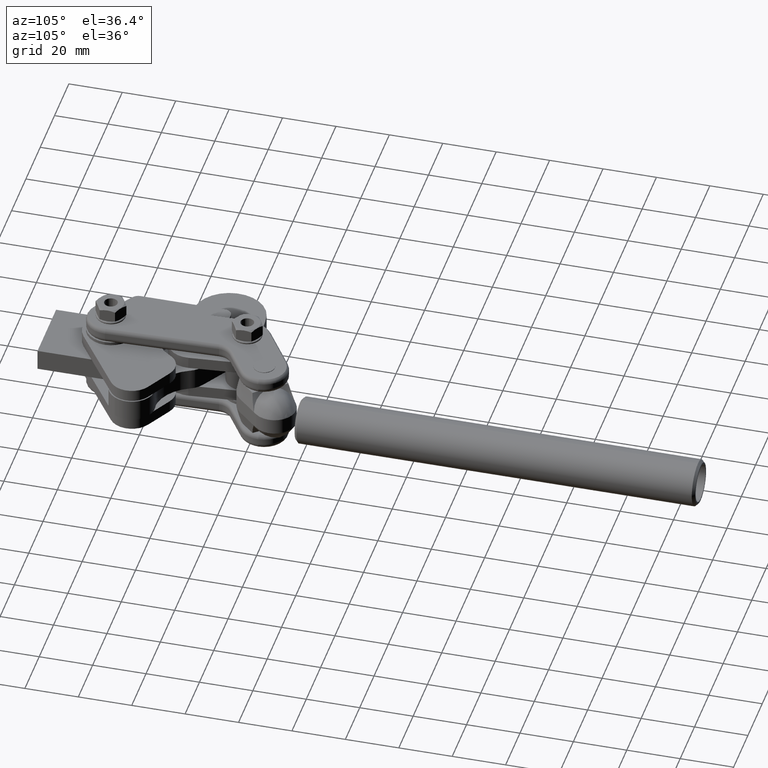
[diagram: clean part render]
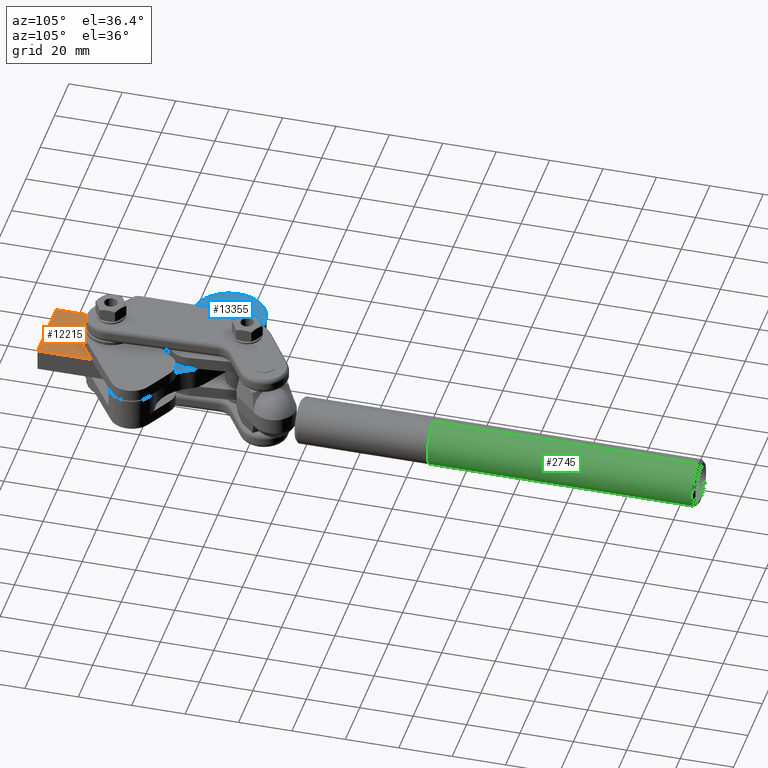
[diagram: same view with three faces highlighted in distinct colors, each labeled with its STEP entity id]
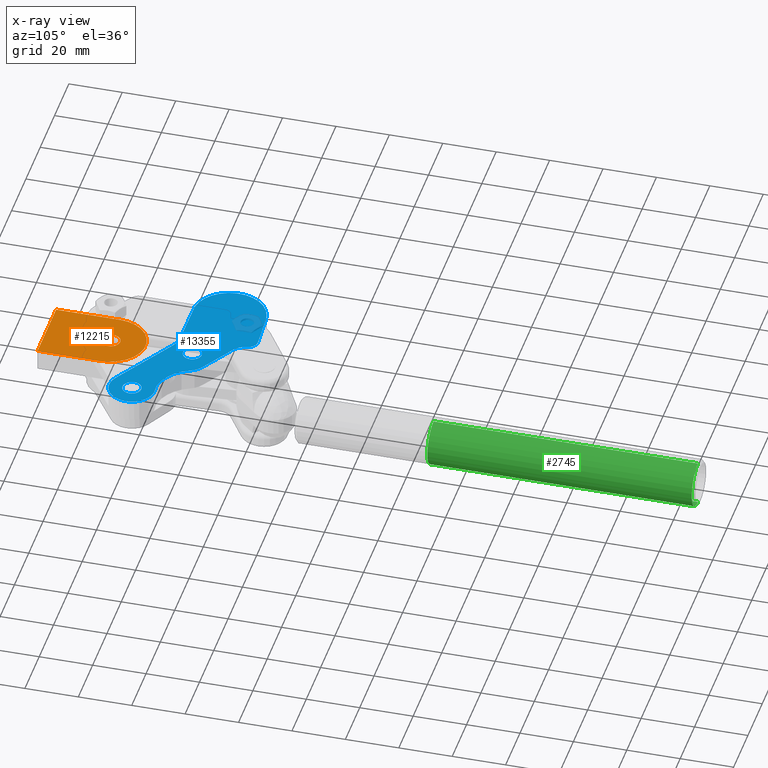
[diagram: x-ray of the same camera — body ghosted, the three highlighted faces saturated]
A machine part, auxiliary view with three faces highlighted in distinct colors.
The next image is the same camera in x-ray (body ghosted, the three faces saturated) — at least one of them is partly hidden behind the body in this view.
Their STEP definitions:

[orange] entity #12215 — the highlighted planar face has unit normal (0, 0, -1).
#26 = CARTESIAN_POINT ( 'NONE',  ( 0.0000000000000000000, 24.00000000000000000, 4.000000000000000000 ) ) ;
#354 = CARTESIAN_POINT ( 'NONE',  ( 0.0000000000000000000, 24.00000000000000000, 4.000000000000000000 ) ) ;
#988 = AXIS2_PLACEMENT_3D ( 'NONE', #9189, #2830, #10236 ) ;
#1036 = CARTESIAN_POINT ( 'NONE',  ( -13.00000000000000000, 0.0000000000000000000, 4.000000000000000000 ) ) ;
#1094 = DIRECTION ( 'NONE',  ( -1.000000000000000000, 0.0000000000000000000, 0.0000000000000000000 ) ) ;
#1440 = DIRECTION ( 'NONE',  ( 1.000000000000000000, 0.0000000000000000000, 0.0000000000000000000 ) ) ;
#1535 = EDGE_CURVE ( 'NONE', #2512, #6559, #13416, .T. ) ;
#1926 = ORIENTED_EDGE ( 'NONE', *, *, #2908, .F. ) ;
#2159 = VERTEX_POINT ( 'NONE', #7593 ) ;
#2172 = VECTOR ( 'NONE', #5694, 1000.000000000000000 ) ;
#2198 = DIRECTION ( 'NONE',  ( 0.0000000000000000000, 0.0000000000000000000, 1.000000000000000000 ) ) ;
#2233 = FACE_BOUND ( 'NONE', #11424, .T. ) ;
#2421 = CARTESIAN_POINT ( 'NONE',  ( 13.00000000000000000, 0.0000000000000000000, 4.000000000000000000 ) ) ;
#2512 = VERTEX_POINT ( 'NONE', #13359 ) ;
#2830 = DIRECTION ( 'NONE',  ( 0.0000000000000000000, 0.0000000000000000000, 1.000000000000000000 ) ) ;
#2908 = EDGE_CURVE ( 'NONE', #12139, #5269, #7750, .T. ) ;
#3834 = ORIENTED_EDGE ( 'NONE', *, *, #5483, .T. ) ;
#3937 = ORIENTED_EDGE ( 'NONE', *, *, #4876, .T. ) ;
#3939 = LINE ( 'NONE', #10620, #9582 ) ;
#4876 = EDGE_CURVE ( 'NONE', #2159, #2512, #12533, .T. ) ;
#5020 = FACE_OUTER_BOUND ( 'NONE', #6527, .T. ) ;
#5039 = LINE ( 'NONE', #9548, #13161 ) ;
#5269 = VERTEX_POINT ( 'NONE', #12309 ) ;
#5483 = EDGE_CURVE ( 'NONE', #6559, #10908, #5039, .T. ) ;
#5694 = DIRECTION ( 'NONE',  ( -0.0000000000000000000, -1.000000000000000000, -0.0000000000000000000 ) ) ;
#5751 = EDGE_CURVE ( 'NONE', #5269, #12139, #6033, .T. ) ;
#6033 = CIRCLE ( 'NONE', #988, 3.499999999999999600 ) ;
#6406 = AXIS2_PLACEMENT_3D ( 'NONE', #26, #7402, #1094 ) ;
#6527 = EDGE_LOOP ( 'NONE', ( #7287, #3834, #8499, #3937 ) ) ;
#6559 = VERTEX_POINT ( 'NONE', #1036 ) ;
#7070 = CARTESIAN_POINT ( 'NONE',  ( 3.499999999999999600, 24.00000000000000000, 4.000000000000000000 ) ) ;
#7287 = ORIENTED_EDGE ( 'NONE', *, *, #1535, .T. ) ;
#7402 = DIRECTION ( 'NONE',  ( -0.0000000000000000000, 0.0000000000000000000, -1.000000000000000000 ) ) ;
#7593 = CARTESIAN_POINT ( 'NONE',  ( 13.00000000000000000, 24.00000000000000000, 4.000000000000000000 ) ) ;
#7749 = AXIS2_PLACEMENT_3D ( 'NONE', #354, #7758, #1440 ) ;
#7750 = CIRCLE ( 'NONE', #7749, 3.499999999999999600 ) ;
#7758 = DIRECTION ( 'NONE',  ( 0.0000000000000000000, 0.0000000000000000000, 1.000000000000000000 ) ) ;
#8499 = ORIENTED_EDGE ( 'NONE', *, *, #9756, .T. ) ;
#8547 = CARTESIAN_POINT ( 'NONE',  ( 0.0000000000000000000, 24.00000000000000000, 4.000000000000000000 ) ) ;
#9077 = ORIENTED_EDGE ( 'NONE', *, *, #5751, .F. ) ;
#9189 = CARTESIAN_POINT ( 'NONE',  ( 0.0000000000000000000, 24.00000000000000000, 4.000000000000000000 ) ) ;
#9364 = CARTESIAN_POINT ( 'NONE',  ( -13.00000000000000000, 0.0000000000000000000, 4.000000000000000000 ) ) ;
#9548 = CARTESIAN_POINT ( 'NONE',  ( -13.00000000000000000, 0.0000000000000000000, 4.000000000000000000 ) ) ;
#9582 = VECTOR ( 'NONE', #12683, 1000.000000000000000 ) ;
#9604 = DIRECTION ( 'NONE',  ( -1.000000000000000000, 0.0000000000000000000, 0.0000000000000000000 ) ) ;
#9756 = EDGE_CURVE ( 'NONE', #10908, #2159, #3939, .T. ) ;
#10236 = DIRECTION ( 'NONE',  ( 1.000000000000000000, 0.0000000000000000000, 0.0000000000000000000 ) ) ;
#10554 = PLANE ( 'NONE',  #6406 ) ;
#10620 = CARTESIAN_POINT ( 'NONE',  ( 13.00000000000000000, 0.0000000000000000000, 4.000000000000000000 ) ) ;
#10625 = DIRECTION ( 'NONE',  ( 1.000000000000000000, 0.0000000000000000000, 0.0000000000000000000 ) ) ;
#10908 = VERTEX_POINT ( 'NONE', #2421 ) ;
#11424 = EDGE_LOOP ( 'NONE', ( #9077, #1926 ) ) ;
#12139 = VERTEX_POINT ( 'NONE', #7070 ) ;
#12183 = AXIS2_PLACEMENT_3D ( 'NONE', #8547, #2198, #9604 ) ;
#12215 = ADVANCED_FACE ( 'NONE', ( #2233, #5020 ), #10554, .F. ) ;
#12309 = CARTESIAN_POINT ( 'NONE',  ( -3.499999999999999600, 24.00000000000000000, 4.000000000000000000 ) ) ;
#12533 = CIRCLE ( 'NONE', #12183, 13.00000000000000000 ) ;
#12683 = DIRECTION ( 'NONE',  ( 0.0000000000000000000, 1.000000000000000000, 0.0000000000000000000 ) ) ;
#13161 = VECTOR ( 'NONE', #10625, 1000.000000000000000 ) ;
#13359 = CARTESIAN_POINT ( 'NONE',  ( -13.00000000000000000, 24.00000000000000000, 4.000000000000000000 ) ) ;
#13416 = LINE ( 'NONE', #9364, #2172 ) ;

[blue] entity #13355 — the highlighted planar face has unit normal (-0, -0, -1).
#31 = AXIS2_PLACEMENT_3D ( 'NONE', #987, #8370, #2023 ) ;
#33 = CIRCLE ( 'NONE', #6667, 9.499999999999991100 ) ;
#121 = EDGE_LOOP ( 'NONE', ( #13562, #13673 ) ) ;
#377 = VERTEX_POINT ( 'NONE', #12415 ) ;
#415 = DIRECTION ( 'NONE',  ( -0.8536011518457667900, 0.5209271288458492400, 0.0000000000000000000 ) ) ;
#471 = FACE_OUTER_BOUND ( 'NONE', #3880, .T. ) ;
#508 = CARTESIAN_POINT ( 'NONE',  ( -24.50242687896368900, 47.95494891805069700, 4.000000000000003600 ) ) ;
#601 = AXIS2_PLACEMENT_3D ( 'NONE', #11770, #5418, #12833 ) ;
#604 = ORIENTED_EDGE ( 'NONE', *, *, #10674, .F. ) ;
#896 = DIRECTION ( 'NONE',  ( -0.5209271288458501300, -0.8536011518457663500, 1.445602896647345100E-016 ) ) ;
#957 = VERTEX_POINT ( 'NONE', #2132 ) ;
#964 = VECTOR ( 'NONE', #1748, 1000.000000000000000 ) ;
#987 = CARTESIAN_POINT ( 'NONE',  ( 25.90000000001508000, 38.79999999997377800, 4.000000000000002700 ) ) ;
#1084 = DIRECTION ( 'NONE',  ( 4.280963818240967600E-017, 1.390111730283586200E-016, 1.000000000000000000 ) ) ;
#1202 = DIRECTION ( 'NONE',  ( -0.9611167817664018100, 0.2761422311183037700, -2.927910912527442500E-017 ) ) ;
#1246 = DIRECTION ( 'NONE',  ( -0.8536011518457667900, 0.5209271288458492400, 0.0000000000000000000 ) ) ;
#1286 = CARTESIAN_POINT ( 'NONE',  ( 0.1212452142729317200, 54.53199929111844600, 4.000000000000003600 ) ) ;
#1346 = EDGE_CURVE ( 'NONE', #9281, #11988, #8315, .T. ) ;
#1693 = ORIENTED_EDGE ( 'NONE', *, *, #7377, .F. ) ;
#1748 = DIRECTION ( 'NONE',  ( -0.8536011518457665700, 0.5209271288458498000, -3.587233478055108900E-017 ) ) ;
#1932 = EDGE_CURVE ( 'NONE', #13576, #2480, #5772, .T. ) ;
#2023 = DIRECTION ( 'NONE',  ( -0.5209271288458500200, -0.8536011518457665700, 1.020425574104004900E-016 ) ) ;
#2132 = CARTESIAN_POINT ( 'NONE',  ( 3.108849245733115800, 52.70875434015797400, 4.000000000000003600 ) ) ;
#2156 = CIRCLE ( 'NONE', #11644, 3.499999999999999100 ) ;
#2196 = ORIENTED_EDGE ( 'NONE', *, *, #7857, .F. ) ;
#2321 = DIRECTION ( 'NONE',  ( -0.8536011518457667900, 0.5209271288458492400, 0.0000000000000000000 ) ) ;
#2411 = CARTESIAN_POINT ( 'NONE',  ( 6.999544392929140100, 60.29219226518822700, 4.000000000000000000 ) ) ;
#2453 = ORIENTED_EDGE ( 'NONE', *, *, #3614, .F. ) ;
#2480 = VERTEX_POINT ( 'NONE', #10083 ) ;
#2497 = CARTESIAN_POINT ( 'NONE',  ( -7.877074267398493900, 37.74024782050781100, 4.000000000000003600 ) ) ;
#2568 = AXIS2_PLACEMENT_3D ( 'NONE', #3843, #11265, #4906 ) ;
#2652 = CIRCLE ( 'NONE', #31, 8.499999999999994700 ) ;
#2747 = DIRECTION ( 'NONE',  ( 0.9982660130668926700, 0.05886397162552297500, -5.091815657396233600E-017 ) ) ;
#2750 = CARTESIAN_POINT ( 'NONE',  ( 25.90000000001508000, 38.79999999997377800, 4.000000000000004400 ) ) ;
#2751 = CARTESIAN_POINT ( 'NONE',  ( 21.47211940482535700, 31.54439020928475300, 4.000000000000002700 ) ) ;
#2776 = EDGE_CURVE ( 'NONE', #6035, #13576, #9095, .T. ) ;
#2782 = AXIS2_PLACEMENT_3D ( 'NONE', #10729, #4359, #11774 ) ;
#2991 = CARTESIAN_POINT ( 'NONE',  ( -8.164832957990750400, 47.84246834038963000, 4.000000000000002700 ) ) ;
#3001 = DIRECTION ( 'NONE',  ( 4.280963818240967600E-017, 1.390111730283586200E-016, 1.000000000000000000 ) ) ;
#3097 = DIRECTION ( 'NONE',  ( -0.5209271288458498000, -0.8536011518457665700, 1.409607993217304700E-016 ) ) ;
#3526 = DIRECTION ( 'NONE',  ( -0.5209271288458520200, -0.8536011518457651300, 1.734723475976807800E-016 ) ) ;
#3527 = EDGE_CURVE ( 'NONE', #9896, #12032, #7623, .T. ) ;
#3545 = EDGE_CURVE ( 'NONE', #9896, #8255, #10111, .T. ) ;
#3566 = CARTESIAN_POINT ( 'NONE',  ( 22.91239596855489700, 40.62324495093425000, 4.000000000000004400 ) ) ;
#3598 = AXIS2_PLACEMENT_3D ( 'NONE', #1286, #8668, #2321 ) ;
#3614 = EDGE_CURVE ( 'NONE', #6788, #9692, #33, .T. ) ;
#3673 = CARTESIAN_POINT ( 'NONE',  ( -2.667802978939998800, 46.27625933896546700, 4.000000000000002700 ) ) ;
#3683 = ORIENTED_EDGE ( 'NONE', *, *, #2776, .F. ) ;
#3693 = EDGE_CURVE ( 'NONE', #11988, #9281, #2156, .T. ) ;
#3719 = EDGE_CURVE ( 'NONE', #377, #4782, #4605, .T. ) ;
#3825 = DIRECTION ( 'NONE',  ( 0.9908800054895677800, 0.1347472252812431700, -6.456412498823434100E-016 ) ) ;
#3843 = CARTESIAN_POINT ( 'NONE',  ( 25.90000000001508000, 38.79999999997377800, 4.000000000000002700 ) ) ;
#3880 = EDGE_LOOP ( 'NONE', ( #8381, #11761, #12487, #8806, #9796, #6640, #2196, #604, #2453, #13124, #12226, #1693, #5192, #3683, #4370 ) ) ;
#4198 = DIRECTION ( 'NONE',  ( -4.280963818240967600E-017, -1.390111730283586200E-016, -1.000000000000000000 ) ) ;
#4236 = ORIENTED_EDGE ( 'NONE', *, *, #9815, .T. ) ;
#4359 = DIRECTION ( 'NONE',  ( -4.280963818240967600E-017, -1.390111730283586200E-016, -1.000000000000000000 ) ) ;
#4364 = LINE ( 'NONE', #8609, #7194 ) ;
#4370 = ORIENTED_EDGE ( 'NONE', *, *, #9531, .F. ) ;
#4401 = CIRCLE ( 'NONE', #2568, 8.499999999999994700 ) ;
#4605 = CIRCLE ( 'NONE', #13059, 8.500000000000051500 ) ;
#4780 = VECTOR ( 'NONE', #3825, 1000.000000000000100 ) ;
#4782 = VERTEX_POINT ( 'NONE', #12518 ) ;
#4906 = DIRECTION ( 'NONE',  ( -0.5209271288458500200, -0.8536011518457665700, 1.020425574104004900E-016 ) ) ;
#4938 = EDGE_CURVE ( 'NONE', #4782, #6788, #9076, .T. ) ;
#5192 = ORIENTED_EDGE ( 'NONE', *, *, #1932, .F. ) ;
#5210 = CARTESIAN_POINT ( 'NONE',  ( 25.90000000001508000, 38.79999999997377800, 4.000000000000004400 ) ) ;
#5226 = VERTEX_POINT ( 'NONE', #2751 ) ;
#5243 = EDGE_CURVE ( 'NONE', #5226, #5669, #6878, .T. ) ;
#5247 = CIRCLE ( 'NONE', #13549, 9.999999999999996400 ) ;
#5403 = CARTESIAN_POINT ( 'NONE',  ( -7.808228198321939000, 47.74001082863817700, 4.000000000000002700 ) ) ;
#5418 = DIRECTION ( 'NONE',  ( 4.280963818240967600E-017, 1.390111730283586200E-016, 1.000000000000000000 ) ) ;
#5482 = CARTESIAN_POINT ( 'NONE',  ( -8.662945562487738700, 72.31070454210930600, 4.000000000000000000 ) ) ;
#5562 = EDGE_CURVE ( 'NONE', #13152, #10232, #12834, .T. ) ;
#5669 = VERTEX_POINT ( 'NONE', #3673 ) ;
#5772 = CIRCLE ( 'NONE', #6683, 5.999999999999976000 ) ;
#5875 = CARTESIAN_POINT ( 'NONE',  ( -26.84491984047457100, 74.84251412023201100, 4.000000000000000000 ) ) ;
#5966 = DIRECTION ( 'NONE',  ( 4.280963818240970000E-017, 1.390111730283586700E-016, 1.000000000000000000 ) ) ;
#6035 = VERTEX_POINT ( 'NONE', #9626 ) ;
#6297 = DIRECTION ( 'NONE',  ( -0.8536011518457667900, 0.5209271288458492400, 0.0000000000000000000 ) ) ;
#6336 = EDGE_LOOP ( 'NONE', ( #4236, #7548 ) ) ;
#6473 = DIRECTION ( 'NONE',  ( -0.9999763008130376800, 0.006884606907656742000, 7.606646523213604500E-017 ) ) ;
#6640 = ORIENTED_EDGE ( 'NONE', *, *, #5243, .F. ) ;
#6667 = AXIS2_PLACEMENT_3D ( 'NONE', #9369, #3001, #10419 ) ;
#6683 = AXIS2_PLACEMENT_3D ( 'NONE', #9035, #1084, #896 ) ;
#6693 = CARTESIAN_POINT ( 'NONE',  ( -25.93634118496199600, 74.86544231912481000, 3.999999999999999100 ) ) ;
#6735 = DIRECTION ( 'NONE',  ( 2.017846745673936800E-017, -3.579765898987047600E-017, -1.000000000000000000 ) ) ;
#6788 = VERTEX_POINT ( 'NONE', #10939 ) ;
#6878 = LINE ( 'NONE', #6996, #964 ) ;
#6996 = CARTESIAN_POINT ( 'NONE',  ( 21.47211940482535700, 31.54439020928475300, 4.000000000000002700 ) ) ;
#7194 = VECTOR ( 'NONE', #6473, 1000.000000000000100 ) ;
#7318 = PLANE ( 'NONE',  #12619 ) ;
#7377 = EDGE_CURVE ( 'NONE', #2480, #377, #10298, .T. ) ;
#7548 = ORIENTED_EDGE ( 'NONE', *, *, #11974, .T. ) ;
#7623 = CIRCLE ( 'NONE', #13332, 13.50000000000000000 ) ;
#7690 = DIRECTION ( 'NONE',  ( 0.8536011518457635700, -0.5209271288458546800, 3.587233478055189700E-017 ) ) ;
#7857 = EDGE_CURVE ( 'NONE', #8072, #5226, #2652, .T. ) ;
#7887 = CARTESIAN_POINT ( 'NONE',  ( -25.53843458512146800, 74.91955261497554400, 3.999999999999999100 ) ) ;
#7933 = CIRCLE ( 'NONE', #3598, 3.499999999999999100 ) ;
#8014 = VERTEX_POINT ( 'NONE', #11857 ) ;
#8072 = VERTEX_POINT ( 'NONE', #11902 ) ;
#8255 = VERTEX_POINT ( 'NONE', #7887 ) ;
#8315 = CIRCLE ( 'NONE', #9628, 3.499999999999999100 ) ;
#8370 = DIRECTION ( 'NONE',  ( -4.280963818240967600E-017, -1.390111730283586200E-016, -1.000000000000000000 ) ) ;
#8381 = ORIENTED_EDGE ( 'NONE', *, *, #3545, .F. ) ;
#8401 = CARTESIAN_POINT ( 'NONE',  ( 24.71209426680241000, 47.21658362808563000, 4.000000000000001800 ) ) ;
#8609 = CARTESIAN_POINT ( 'NONE',  ( -8.164832957990750400, 47.84246834038963000, 4.000000000000002700 ) ) ;
#8668 = DIRECTION ( 'NONE',  ( 2.017846745673936800E-017, -3.579765898987047600E-017, -1.000000000000000000 ) ) ;
#8806 = ORIENTED_EDGE ( 'NONE', *, *, #5562, .F. ) ;
#8899 = CARTESIAN_POINT ( 'NONE',  ( 28.88760403147526300, 36.97675504901330600, 4.000000000000004400 ) ) ;
#8933 = FACE_BOUND ( 'NONE', #6336, .T. ) ;
#8949 = VECTOR ( 'NONE', #2747, 1000.000000000000100 ) ;
#9035 = CARTESIAN_POINT ( 'NONE',  ( -2.739245469980559300, 73.26452696480140500, 3.999999999999999100 ) ) ;
#9076 = CIRCLE ( 'NONE', #601, 15.00000000000000700 ) ;
#9095 = CIRCLE ( 'NONE', #2782, 4.000000000000020400 ) ;
#9274 = FACE_BOUND ( 'NONE', #121, .T. ) ;
#9281 = VERTEX_POINT ( 'NONE', #3566 ) ;
#9369 = CARTESIAN_POINT ( 'NONE',  ( 23.38443491791767000, 56.62335356538709900, 4.000000000000000000 ) ) ;
#9420 = CARTESIAN_POINT ( 'NONE',  ( 39.82660056468535700, 45.30333241578456000, 4.000000000000000900 ) ) ;
#9466 = DIRECTION ( 'NONE',  ( -4.280963818240970700E-017, -1.390111730283586700E-016, -1.000000000000000000 ) ) ;
#9531 = EDGE_CURVE ( 'NONE', #8255, #6035, #11745, .T. ) ;
#9626 = CARTESIAN_POINT ( 'NONE',  ( -12.84753484399471900, 75.66788697924880600, 3.999999999999999100 ) ) ;
#9628 = AXIS2_PLACEMENT_3D ( 'NONE', #2750, #13672, #1246 ) ;
#9692 = VERTEX_POINT ( 'NONE', #8401 ) ;
#9796 = ORIENTED_EDGE ( 'NONE', *, *, #9921, .F. ) ;
#9815 = EDGE_CURVE ( 'NONE', #8014, #957, #7933, .T. ) ;
#9896 = VERTEX_POINT ( 'NONE', #6693 ) ;
#9898 = DIRECTION ( 'NONE',  ( 4.280963818240967600E-017, 1.390111730283586200E-016, 1.000000000000000000 ) ) ;
#9921 = EDGE_CURVE ( 'NONE', #5669, #13152, #5247, .T. ) ;
#10083 = CARTESIAN_POINT ( 'NONE',  ( -5.864808243055432700, 68.14292005372678300, 3.999999999999999100 ) ) ;
#10111 = LINE ( 'NONE', #12347, #4780 ) ;
#10232 = VERTEX_POINT ( 'NONE', #2991 ) ;
#10298 = LINE ( 'NONE', #2411, #12438 ) ;
#10419 = DIRECTION ( 'NONE',  ( -0.5209271288458503500, -0.8536011518457662400, 1.826024711554535400E-016 ) ) ;
#10564 = CARTESIAN_POINT ( 'NONE',  ( 2.571663797739407500, 53.03658247449919800, 4.000000000000001800 ) ) ;
#10674 = EDGE_CURVE ( 'NONE', #9692, #8072, #4401, .T. ) ;
#10729 = CARTESIAN_POINT ( 'NONE',  ( -12.61207895749263000, 71.67482292698120700, 3.999999999999999100 ) ) ;
#10939 = CARTESIAN_POINT ( 'NONE',  ( 21.84791358839372000, 47.24843478152995100, 4.000000000000002700 ) ) ;
#11265 = DIRECTION ( 'NONE',  ( -4.280963818240967600E-017, -1.390111730283586200E-016, -1.000000000000000000 ) ) ;
#11603 = DIRECTION ( 'NONE',  ( -0.5209271288458498000, -0.8536011518457664600, 1.020425574103998000E-016 ) ) ;
#11644 = AXIS2_PLACEMENT_3D ( 'NONE', #5210, #12631, #6297 ) ;
#11745 = LINE ( 'NONE', #5875, #8949 ) ;
#11761 = ORIENTED_EDGE ( 'NONE', *, *, #3527, .T. ) ;
#11770 = CARTESIAN_POINT ( 'NONE',  ( 24.27399989816835600, 62.05093812446232700, 4.000000000000000000 ) ) ;
#11774 = DIRECTION ( 'NONE',  ( -0.5209271288458498000, -0.8536011518457666800, 2.168404344970997800E-016 ) ) ;
#11857 = CARTESIAN_POINT ( 'NONE',  ( -2.866358817187251200, 56.35524424207891800, 4.000000000000003600 ) ) ;
#11902 = CARTESIAN_POINT ( 'NONE',  ( 33.15560979070409800, 34.37211940478405800, 4.000000000000002700 ) ) ;
#11974 = EDGE_CURVE ( 'NONE', #957, #8014, #12831, .T. ) ;
#11988 = VERTEX_POINT ( 'NONE', #8899 ) ;
#12032 = VERTEX_POINT ( 'NONE', #508 ) ;
#12226 = ORIENTED_EDGE ( 'NONE', *, *, #3719, .F. ) ;
#12256 = CARTESIAN_POINT ( 'NONE',  ( -7.808228198321939000, 47.74001082863817700, 4.000000000000002700 ) ) ;
#12298 = CARTESIAN_POINT ( 'NONE',  ( -26.05025622353003100, 61.36592294382896300, 4.000000000000001800 ) ) ;
#12305 = EDGE_CURVE ( 'NONE', #10232, #12032, #4364, .T. ) ;
#12347 = CARTESIAN_POINT ( 'NONE',  ( -26.83903344331204000, 74.74268751892532200, 4.000000000000000000 ) ) ;
#12415 = CARTESIAN_POINT ( 'NONE',  ( 6.999544392929140100, 60.29219226518822700, 4.000000000000000000 ) ) ;
#12438 = VECTOR ( 'NONE', #7690, 999.9999999999998900 ) ;
#12487 = ORIENTED_EDGE ( 'NONE', *, *, #12305, .F. ) ;
#12507 = VECTOR ( 'NONE', #1202, 1000.000000000000100 ) ;
#12518 = CARTESIAN_POINT ( 'NONE',  ( 10.42144494044777800, 56.29709409257096600, 4.000000000000000900 ) ) ;
#12619 = AXIS2_PLACEMENT_3D ( 'NONE', #9420, #9466, #3097 ) ;
#12631 = DIRECTION ( 'NONE',  ( 2.017846745673936800E-017, -3.579765898987047600E-017, -1.000000000000000000 ) ) ;
#12831 = CIRCLE ( 'NONE', #13309, 3.499999999999999100 ) ;
#12833 = DIRECTION ( 'NONE',  ( -0.5209271288458496900, -0.8536011518457666800, 1.156482317317870700E-016 ) ) ;
#12834 = LINE ( 'NONE', #5403, #12507 ) ;
#13059 = AXIS2_PLACEMENT_3D ( 'NONE', #10564, #4198, #11603 ) ;
#13083 = CARTESIAN_POINT ( 'NONE',  ( 0.1212452142729317200, 54.53199929111844600, 4.000000000000003600 ) ) ;
#13124 = ORIENTED_EDGE ( 'NONE', *, *, #4938, .F. ) ;
#13152 = VERTEX_POINT ( 'NONE', #12256 ) ;
#13309 = AXIS2_PLACEMENT_3D ( 'NONE', #13083, #6735, #415 ) ;
#13332 = AXIS2_PLACEMENT_3D ( 'NONE', #12298, #5966, #13376 ) ;
#13355 = ADVANCED_FACE ( 'NONE', ( #8933, #9274, #471 ), #7318, .F. ) ;
#13376 = DIRECTION ( 'NONE',  ( 0.5209271288458498000, 0.8536011518457664600, -1.284980352575412700E-016 ) ) ;
#13549 = AXIS2_PLACEMENT_3D ( 'NONE', #2497, #9898, #3526 ) ;
#13562 = ORIENTED_EDGE ( 'NONE', *, *, #1346, .T. ) ;
#13576 = VERTEX_POINT ( 'NONE', #5482 ) ;
#13672 = DIRECTION ( 'NONE',  ( 2.017846745673936800E-017, -3.579765898987047600E-017, -1.000000000000000000 ) ) ;
#13673 = ORIENTED_EDGE ( 'NONE', *, *, #3693, .T. ) ;

[green] entity #2745 — the highlighted cylindrical surface (edge-blend (fillet) strip) has radius 8.65 mm, axis along (-0, -1, -0).
#419 = VERTEX_POINT ( 'NONE', #13436 ) ;
#716 = ORIENTED_EDGE ( 'NONE', *, *, #9775, .F. ) ;
#722 = CARTESIAN_POINT ( 'NONE',  ( 0.0000000000000000000, 149.0000000000000000, 0.0000000000000000000 ) ) ;
#890 = CIRCLE ( 'NONE', #10774, 8.649999999999998600 ) ;
#996 = FACE_OUTER_BOUND ( 'NONE', #9086, .T. ) ;
#1153 = LINE ( 'NONE', #5052, #6414 ) ;
#1765 = CARTESIAN_POINT ( 'NONE',  ( 0.0000000000000000000, 49.99999999999998600, 0.0000000000000000000 ) ) ;
#1793 = DIRECTION ( 'NONE',  ( 0.0000000000000000000, 0.0000000000000000000, 1.000000000000000000 ) ) ;
#2076 = AXIS2_PLACEMENT_3D ( 'NONE', #3203, #9562, #8512 ) ;
#2506 = EDGE_CURVE ( 'NONE', #5198, #5462, #9906, .T. ) ;
#2745 = ADVANCED_FACE ( 'NONE', ( #996 ), #11880, .T. ) ;
#2814 = DIRECTION ( 'NONE',  ( 0.0000000000000000000, 0.0000000000000000000, 1.000000000000000000 ) ) ;
#3203 = CARTESIAN_POINT ( 'NONE',  ( 0.0000000000000000000, 150.0000000000000000, 0.0000000000000000000 ) ) ;
#3227 = DIRECTION ( 'NONE',  ( -0.0000000000000000000, -1.000000000000000000, -0.0000000000000000000 ) ) ;
#4251 = CARTESIAN_POINT ( 'NONE',  ( 0.0000000000000000000, 150.0000000000000000, -8.649999999999998600 ) ) ;
#4517 = ORIENTED_EDGE ( 'NONE', *, *, #4727, .T. ) ;
#4727 = EDGE_CURVE ( 'NONE', #13205, #5198, #1153, .T. ) ;
#4757 = CARTESIAN_POINT ( 'NONE',  ( 1.059319481262460400E-015, 49.99999999999998600, 8.649999999999998600 ) ) ;
#5003 = DIRECTION ( 'NONE',  ( -0.0000000000000000000, -1.000000000000000000, -0.0000000000000000000 ) ) ;
#5052 = CARTESIAN_POINT ( 'NONE',  ( 1.059319481262460400E-015, 150.0000000000000000, 8.649999999999998600 ) ) ;
#5198 = VERTEX_POINT ( 'NONE', #4757 ) ;
#5366 = ORIENTED_EDGE ( 'NONE', *, *, #13197, .T. ) ;
#5462 = VERTEX_POINT ( 'NONE', #7321 ) ;
#6414 = VECTOR ( 'NONE', #5003, 1000.000000000000000 ) ;
#6436 = VECTOR ( 'NONE', #3227, 1000.000000000000000 ) ;
#6605 = AXIS2_PLACEMENT_3D ( 'NONE', #1765, #9173, #2814 ) ;
#7040 = CARTESIAN_POINT ( 'NONE',  ( 1.059319481262460400E-015, 149.0000000000000000, 8.649999999999998600 ) ) ;
#7321 = CARTESIAN_POINT ( 'NONE',  ( 0.0000000000000000000, 49.99999999999998600, -8.649999999999998600 ) ) ;
#8132 = DIRECTION ( 'NONE',  ( 0.0000000000000000000, -1.000000000000000000, 0.0000000000000000000 ) ) ;
#8512 = DIRECTION ( 'NONE',  ( 0.0000000000000000000, 0.0000000000000000000, -1.000000000000000000 ) ) ;
#9086 = EDGE_LOOP ( 'NONE', ( #5366, #4517, #11001, #716 ) ) ;
#9173 = DIRECTION ( 'NONE',  ( 0.0000000000000000000, 1.000000000000000000, 0.0000000000000000000 ) ) ;
#9562 = DIRECTION ( 'NONE',  ( -0.0000000000000000000, -1.000000000000000000, -0.0000000000000000000 ) ) ;
#9775 = EDGE_CURVE ( 'NONE', #419, #5462, #12047, .T. ) ;
#9906 = CIRCLE ( 'NONE', #6605, 8.649999999999998600 ) ;
#10774 = AXIS2_PLACEMENT_3D ( 'NONE', #722, #8132, #1793 ) ;
#11001 = ORIENTED_EDGE ( 'NONE', *, *, #2506, .T. ) ;
#11880 = CYLINDRICAL_SURFACE ( 'NONE', #2076, 8.649999999999998600 ) ;
#12047 = LINE ( 'NONE', #4251, #6436 ) ;
#13197 = EDGE_CURVE ( 'NONE', #419, #13205, #890, .T. ) ;
#13205 = VERTEX_POINT ( 'NONE', #7040 ) ;
#13436 = CARTESIAN_POINT ( 'NONE',  ( 0.0000000000000000000, 149.0000000000000000, -8.649999999999998600 ) ) ;